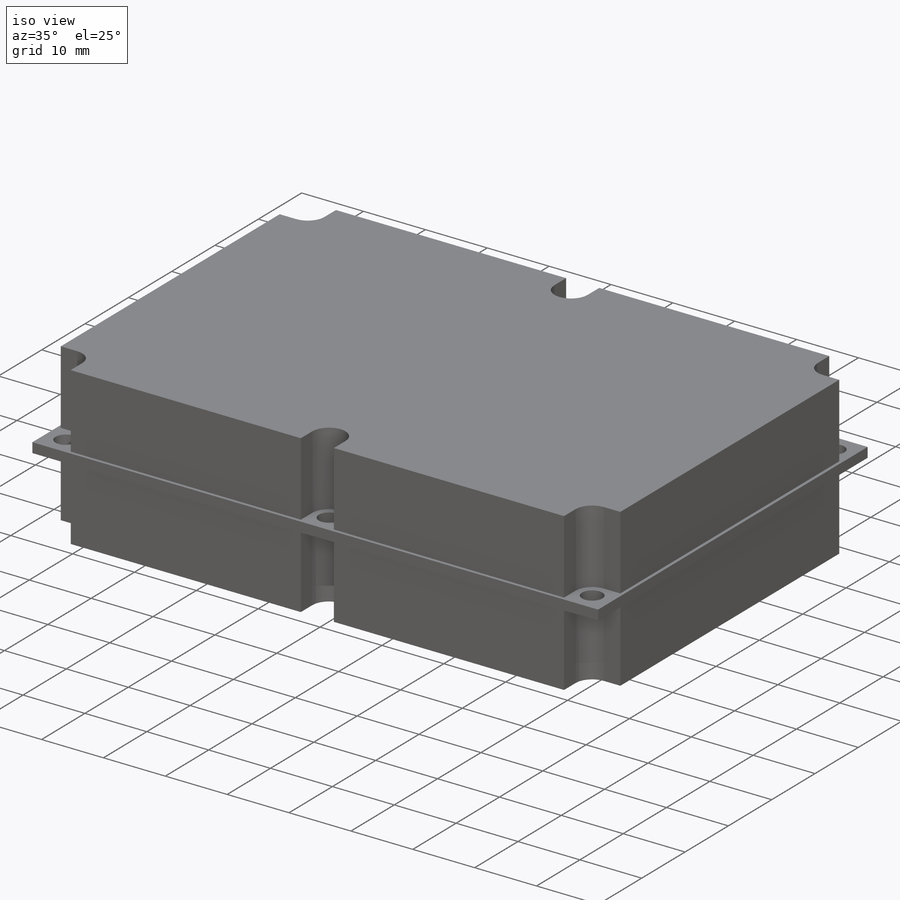
[diagram: iso view]
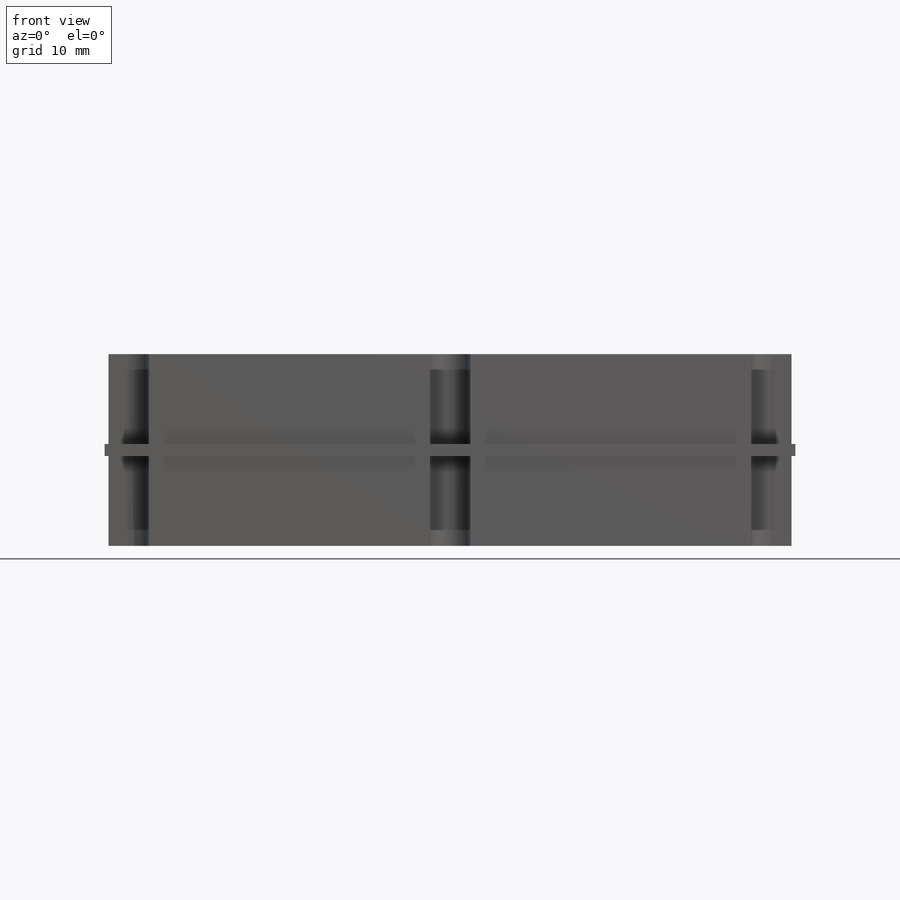
[diagram: front view]
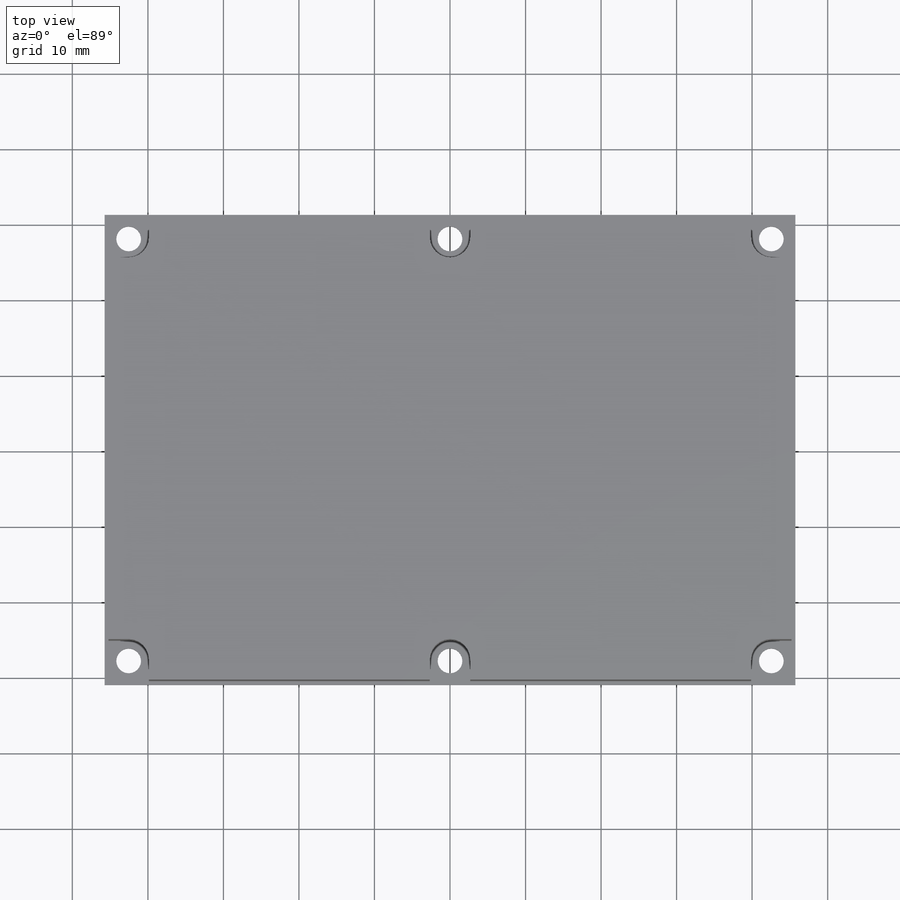
[diagram: top view]
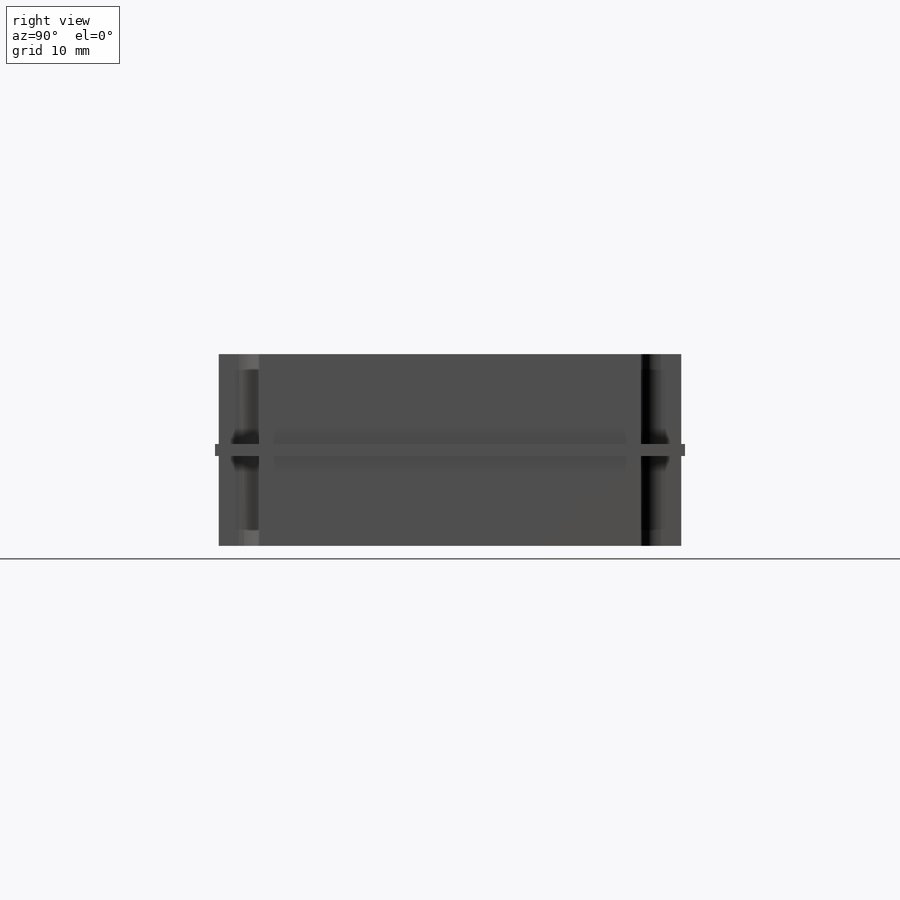
[diagram: right view]
SOLIDWORKS PART (.sldprt)
format: sldprt  version: not decoded by parser v0  size: 207,872 bytes
history: native  units: mm
features: sketch x3, extrude x2, material x1, cut_extrude x1, pattern_linear x1 (+11 scaffold rows collapsed)
feature tree (19):
  scaffold x11  (default folders/planes/origin — collapsed)
  material  "Material <not specified>"
  sketch  "Sketch1"  dims[D1=62.23mm D2=91.44mm]
  extrude  "Boss-Extrude1"  Depth=1.5875mm
  sketch  "Sketch3"  dims[D3=3.2766mm D1=27.94mm D2=42.545mm]
  cut_extrude  "Cut-Extrude1"  [1 undecoded]
  pattern_linear  "LPattern1"  Count1=3 Count2=2 Spacing1=42.545mm Spacing2=55.88mm
  sketch  "Sketch2"  dims[D2=0.5mm D1=0.5mm]
  extrude  "Boss-Extrude2"  Depth=25.4mm
decode coverage: 6 of 7 modeling features carry decoded parameters
note: 1 parameter value undecoded
note: suppression state not decoded; provenance and decode notes live in map.json
